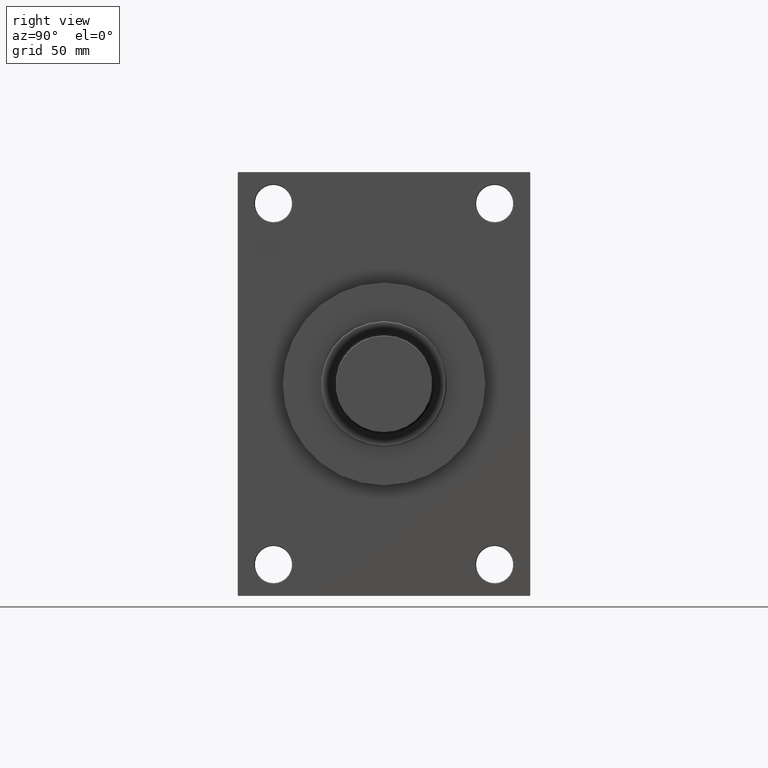
[diagram: clean part render]
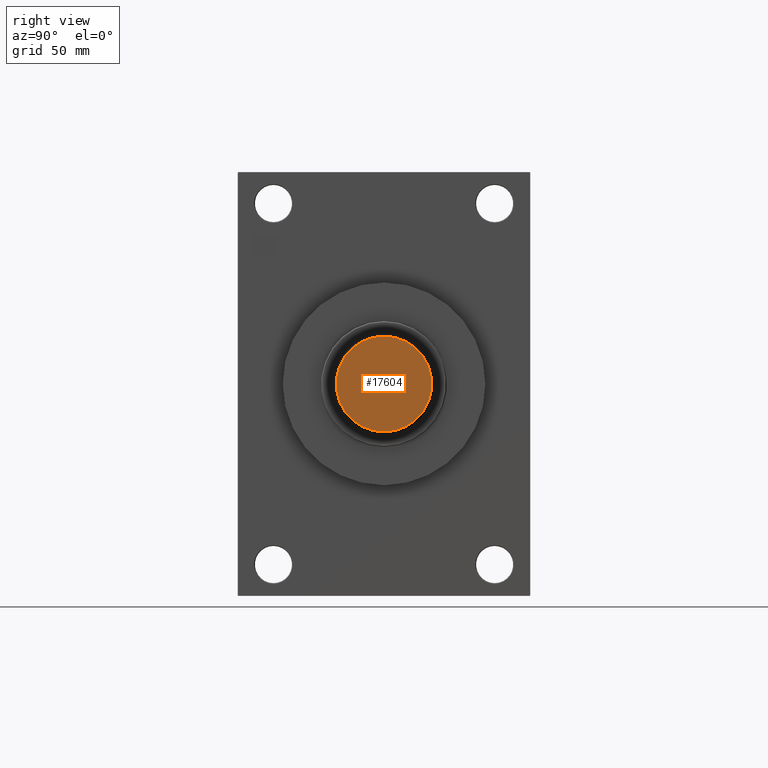
[diagram: same view with one face highlighted and labeled with its STEP entity id]
A machine part, right view. The second image highlights one B-rep face of the part: STEP entity #17604.
In plain terms, the highlighted planar face has unit normal (1, 0, 0).
Its self-contained STEP definition (entity closure, byte-faithful):
#711 = DIRECTION ( 'NONE',  ( 1.000000000000000000, 0.000000000000000000, 0.000000000000000000 ) ) ;
#1592 = DIRECTION ( 'NONE',  ( 0.000000000000000000, 0.000000000000000000, 1.000000000000000000 ) ) ;
#2550 = AXIS2_PLACEMENT_3D ( 'NONE', #13302, #5986, #35914 ) ;
#5005 = PLANE ( 'NONE',  #12541 ) ;
#5986 = DIRECTION ( 'NONE',  ( 0.000000000000000000, 0.000000000000000000, 1.000000000000000000 ) ) ;
#6088 = EDGE_LOOP ( 'NONE', ( #24057, #12146 ) ) ;
#8022 = DIRECTION ( 'NONE',  ( 0.000000000000000000, 0.000000000000000000, 1.000000000000000000 ) ) ;
#8673 = DIRECTION ( 'NONE',  ( 1.000000000000000000, 0.000000000000000000, -0.000000000000000000 ) ) ;
#9058 = CARTESIAN_POINT ( 'NONE',  ( -33.50000000000000000, 4.133182947122317561E-15, 0.000000000000000000 ) ) ;
#11606 = AXIS2_PLACEMENT_3D ( 'NONE', #41364, #8022, #711 ) ;
#12146 = ORIENTED_EDGE ( 'NONE', *, *, #38066, .T. ) ;
#12541 = AXIS2_PLACEMENT_3D ( 'NONE', #27842, #1592, #8673 ) ;
#13302 = CARTESIAN_POINT ( 'NONE',  ( 0.000000000000000000, 0.000000000000000000, 0.000000000000000000 ) ) ;
#17604 = ADVANCED_FACE ( 'NONE', ( #38821 ), #5005, .T. ) ;
#20223 = VERTEX_POINT ( 'NONE', #9058 ) ;
#22760 = CIRCLE ( 'NONE', #2550, 33.50000000000000000 ) ;
#23607 = VERTEX_POINT ( 'NONE', #47952 ) ;
#24057 = ORIENTED_EDGE ( 'NONE', *, *, #48004, .T. ) ;
#27842 = CARTESIAN_POINT ( 'NONE',  ( 0.000000000000000000, 0.000000000000000000, 0.000000000000000000 ) ) ;
#35914 = DIRECTION ( 'NONE',  ( 1.000000000000000000, 0.000000000000000000, 0.000000000000000000 ) ) ;
#38066 = EDGE_CURVE ( 'NONE', #20223, #23607, #48111, .T. ) ;
#38821 = FACE_OUTER_BOUND ( 'NONE', #6088, .T. ) ;
#41364 = CARTESIAN_POINT ( 'NONE',  ( 0.000000000000000000, 0.000000000000000000, 0.000000000000000000 ) ) ;
#47952 = CARTESIAN_POINT ( 'NONE',  ( 33.50000000000000000, 0.000000000000000000, 0.000000000000000000 ) ) ;
#48004 = EDGE_CURVE ( 'NONE', #23607, #20223, #22760, .T. ) ;
#48111 = CIRCLE ( 'NONE', #11606, 33.50000000000000000 ) ;